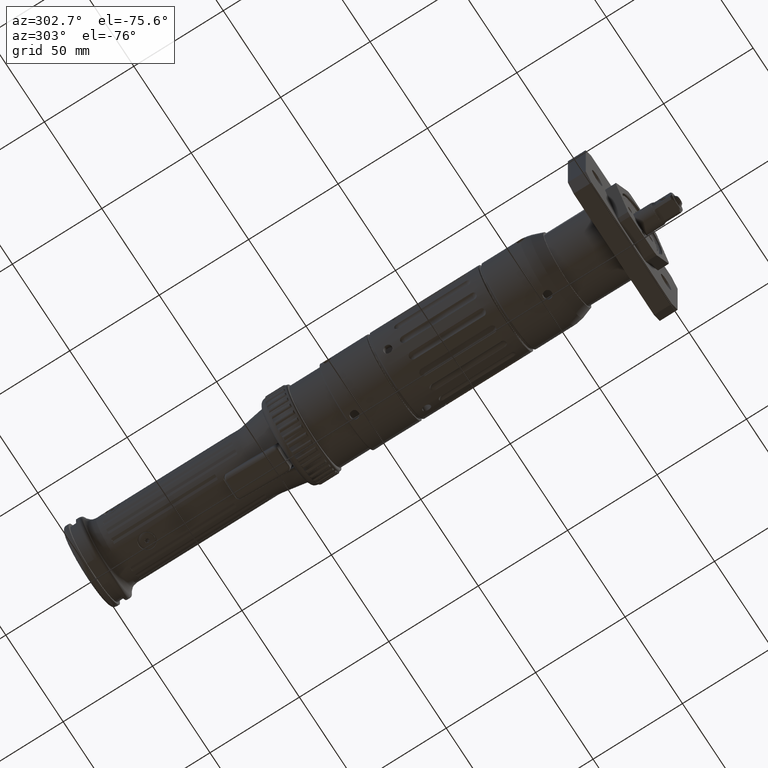
[diagram: clean part render]
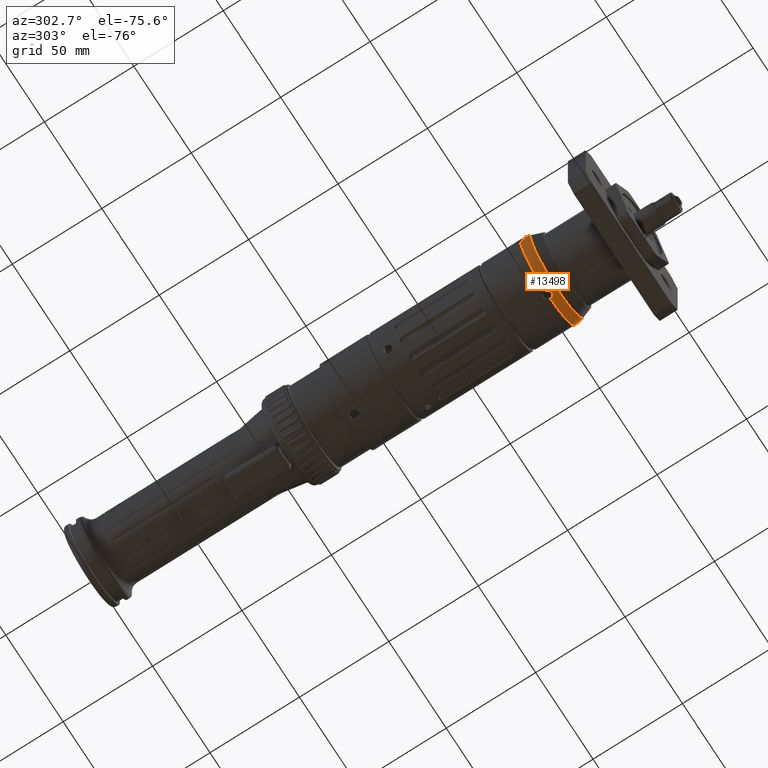
[diagram: same view with one face highlighted and labeled with its STEP entity id]
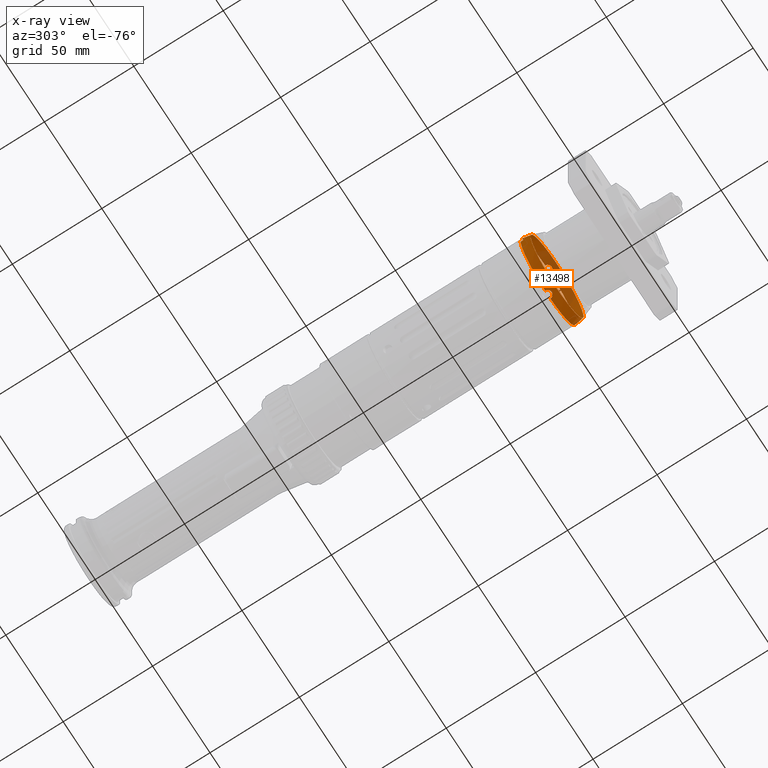
[diagram: x-ray of the same camera — body ghosted, the highlighted face saturated]
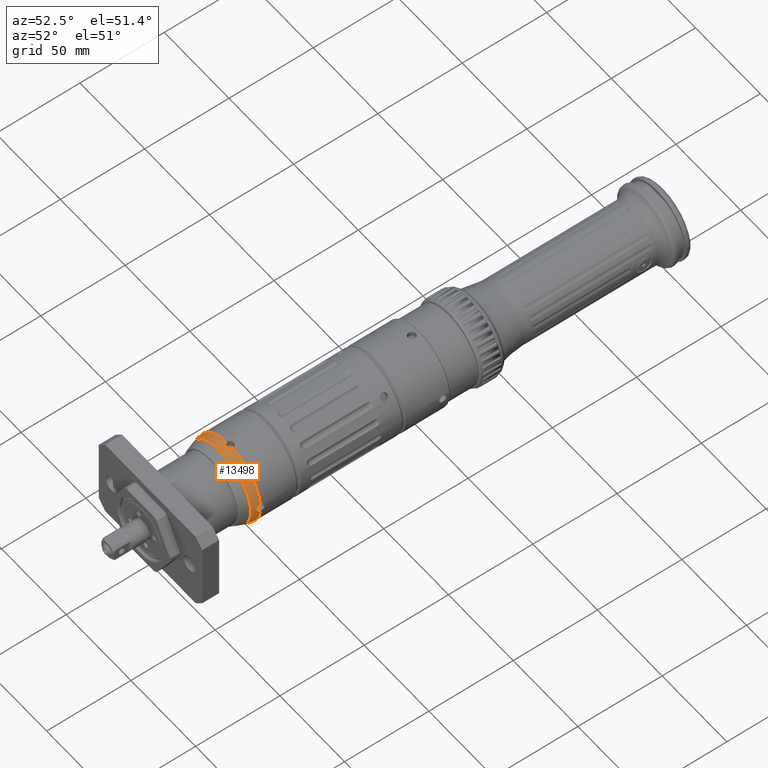
[diagram: same view with one face highlighted and labeled with its STEP entity id]
A machine part, auxiliary view. The second image highlights one B-rep face of the part: STEP entity #13498.
The next image is the same camera in x-ray: the body ghosted, the highlighted face saturated — about 30% of this face is hidden behind the body in this view.
A second angle (auxiliary view) of the same face is appended — the face is thin or edge-on in the first view.
In plain terms, the highlighted face is a freeform B-spline surface patch.
Its self-contained STEP definition (entity closure, byte-faithful):
#88=(
BOUNDED_CURVE()
B_SPLINE_CURVE(2,(#21189,#21190,#21191),.UNSPECIFIED.,.F.,.F.)
B_SPLINE_CURVE_WITH_KNOTS((3,3),(0.146414003445394,0.349065850398866),
 .UNSPECIFIED.)
CURVE()
GEOMETRIC_REPRESENTATION_ITEM()
RATIONAL_B_SPLINE_CURVE((0.992601043678406,0.991180068437155,1.))
REPRESENTATION_ITEM('')
);
#112=(
BOUNDED_SURFACE()
B_SPLINE_SURFACE(2,2,((#21161,#21162,#21163,#21164,#21165,#21166,#21167,
#21168,#21169),(#21170,#21171,#21172,#21173,#21174,#21175,#21176,#21177,
#21178),(#21179,#21180,#21181,#21182,#21183,#21184,#21185,#21186,#21187)),
 .UNSPECIFIED.,.F.,.T.,.F.)
B_SPLINE_SURFACE_WITH_KNOTS((3,3),(3,2,2,2,3),(-0.349065850398866,1.51400150989094E-15),
(-3.14159265358979,-1.5707963267949,0.,1.5707963267949,3.14159265358979),
 .UNSPECIFIED.)
GEOMETRIC_REPRESENTATION_ITEM()
RATIONAL_B_SPLINE_SURFACE(((1.,0.707106781186548,1.,0.707106781186548,1.,
0.707106781186548,1.,0.707106781186548,1.),(0.984807753012233,0.696364240320036,
0.984807753012233,0.696364240320036,0.984807753012233,0.696364240320036,
0.984807753012233,0.696364240320036,0.984807753012233),(1.,0.707106781186548,
1.,0.707106781186548,1.,0.707106781186548,1.,0.707106781186548,1.)))
REPRESENTATION_ITEM('')
SURFACE()
);
#1018=FACE_OUTER_BOUND('',#1873,.T.);
#1873=EDGE_LOOP('',(#8864,#8865,#8866,#8867,#8868,#8869,#8870,#8871,#8872,
#8873,#8874,#8875,#8876));
#2982=CIRCLE('',#14410,24.);
#2983=CIRCLE('',#14411,24.);
#2984=CIRCLE('',#14412,24.);
#2985=CIRCLE('',#14413,24.);
#2988=CIRCLE('',#14418,23.0953893117886);
#2989=CIRCLE('',#14419,23.0953893117886);
#5371=B_SPLINE_CURVE_WITH_KNOTS('',3,(#20965,#20966,#20967,#20968,#20969,
#20970,#20971,#20972,#20973,#20974,#20975,#20976,#20977,#20978,#20979,#20980,
#20981,#20982,#20983,#20984,#20985,#20986),.UNSPECIFIED.,.F.,.F.,(4,2,2,
2,2,2,2,2,2,2,4),(-0.701805174291092,-0.626086869298144,-0.544119406304498,
-0.452416239114534,-0.396364582451498,-0.355433841033587,-0.315785137511392,
-0.265073836999457,-0.181571571946541,-0.0912090586456592,-2.40558198899764E-6),
 .UNSPECIFIED.);
#5374=B_SPLINE_CURVE_WITH_KNOTS('',3,(#21020,#21021,#21022,#21023,#21024,
#21025,#21026,#21027,#21028,#21029,#21030,#21031),.UNSPECIFIED.,.F.,.F.,
(4,2,2,2,2,4),(-0.350955575702463,-0.315785137511466,-0.265073836999518,
-0.181571571946578,-0.0912090586456681,-2.40558198949841E-6),
 .UNSPECIFIED.);
#5375=B_SPLINE_CURVE_WITH_KNOTS('',3,(#21032,#21033,#21034,#21035,#21036,
#21037,#21038,#21039,#21040,#21041,#21042,#21043,#21044,#21045),
 .UNSPECIFIED.,.F.,.F.,(4,2,2,2,2,2,4),(-0.701805174291221,-0.626086869298249,
-0.54411940630459,-0.452416239114606,-0.396364582451586,-0.355433841033673,
-0.350955575702463),.UNSPECIFIED.);
#5378=B_SPLINE_CURVE_WITH_KNOTS('',3,(#21078,#21079,#21080,#21081,#21082,
#21083,#21084,#21085,#21086,#21087,#21088,#21089,#21090,#21091,#21092,#21093,
#21094,#21095,#21096,#21097,#21098,#21099),.UNSPECIFIED.,.F.,.F.,(4,2,2,
2,2,2,2,2,2,2,4),(-0.701805174291044,-0.626086869298089,-0.544119406304454,
-0.45241623911449,-0.39636458245146,-0.35543384103356,-0.31578513751137,
-0.26507383699943,-0.181571571946522,-0.0912090586456537,-2.40558198941479E-6),
 .UNSPECIFIED.);
#5381=B_SPLINE_CURVE_WITH_KNOTS('',3,(#21139,#21140,#21141,#21142,#21143,
#21144,#21145,#21146,#21147,#21148,#21149,#21150,#21151,#21152,#21153,#21154,
#21155,#21156,#21157,#21158,#21159,#21160),.UNSPECIFIED.,.F.,.F.,(4,2,2,
2,2,2,2,2,2,2,4),(-0.701802741551978,-0.626084056451586,-0.544116663821935,
-0.45241348281178,-0.396362082775909,-0.35543171577453,-0.315783477344543,
-0.265072829750344,-0.181571501097342,-0.0912090503521253,0.),
 .UNSPECIFIED.);
#5601=VERTEX_POINT('',#20938);
#5602=VERTEX_POINT('',#20952);
#5605=VERTEX_POINT('',#20992);
#5606=VERTEX_POINT('',#21006);
#5607=VERTEX_POINT('',#21019);
#5610=VERTEX_POINT('',#21051);
#5611=VERTEX_POINT('',#21065);
#5612=VERTEX_POINT('',#21101);
#5614=VERTEX_POINT('',#21116);
#5617=VERTEX_POINT('',#21188);
#5618=VERTEX_POINT('',#21192);
#6899=EDGE_CURVE('',#5601,#5602,#5371,.T.);
#6903=EDGE_CURVE('',#5607,#5606,#5374,.T.);
#6904=EDGE_CURVE('',#5605,#5607,#5375,.T.);
#6908=EDGE_CURVE('',#5610,#5611,#5378,.T.);
#6909=EDGE_CURVE('',#5612,#5601,#2982,.T.);
#6912=EDGE_CURVE('',#5611,#5614,#2983,.T.);
#6913=EDGE_CURVE('',#5606,#5610,#2984,.T.);
#6914=EDGE_CURVE('',#5602,#5605,#2985,.T.);
#6917=EDGE_CURVE('',#5614,#5612,#5381,.T.);
#6918=EDGE_CURVE('',#5607,#5617,#88,.T.);
#6919=EDGE_CURVE('',#5617,#5618,#2988,.T.);
#6920=EDGE_CURVE('',#5618,#5617,#2989,.T.);
#8864=ORIENTED_EDGE('',*,*,#6899,.T.);
#8865=ORIENTED_EDGE('',*,*,#6914,.T.);
#8866=ORIENTED_EDGE('',*,*,#6904,.T.);
#8867=ORIENTED_EDGE('',*,*,#6918,.T.);
#8868=ORIENTED_EDGE('',*,*,#6919,.T.);
#8869=ORIENTED_EDGE('',*,*,#6920,.T.);
#8870=ORIENTED_EDGE('',*,*,#6918,.F.);
#8871=ORIENTED_EDGE('',*,*,#6903,.T.);
#8872=ORIENTED_EDGE('',*,*,#6913,.T.);
#8873=ORIENTED_EDGE('',*,*,#6908,.T.);
#8874=ORIENTED_EDGE('',*,*,#6912,.T.);
#8875=ORIENTED_EDGE('',*,*,#6917,.T.);
#8876=ORIENTED_EDGE('',*,*,#6909,.T.);
#13498=ADVANCED_FACE('',(#1018),#112,.F.);
#14410=AXIS2_PLACEMENT_3D('',#21102,#16407,#16408);
#14411=AXIS2_PLACEMENT_3D('',#21130,#16409,#16410);
#14412=AXIS2_PLACEMENT_3D('',#21131,#16411,#16412);
#14413=AXIS2_PLACEMENT_3D('',#21132,#16413,#16414);
#14418=AXIS2_PLACEMENT_3D('',#21193,#16423,#16424);
#14419=AXIS2_PLACEMENT_3D('',#21194,#16425,#16426);
#16407=DIRECTION('center_axis',(-8.42499371585531E-16,-1.,-1.36108718820059E-15));
#16408=DIRECTION('ref_axis',(2.1632341619892E-16,-1.36790363638354E-15,
1.));
#16409=DIRECTION('center_axis',(-8.42499371585531E-16,-1.,-1.36108718820059E-15));
#16410=DIRECTION('ref_axis',(2.1632341619892E-16,-1.36790363638354E-15,
1.));
#16411=DIRECTION('center_axis',(-8.42499371585531E-16,-1.,-1.36108718820059E-15));
#16412=DIRECTION('ref_axis',(2.1632341619892E-16,-1.36790363638354E-15,
1.));
#16413=DIRECTION('center_axis',(-8.42499371585531E-16,-1.,-1.36108718820059E-15));
#16414=DIRECTION('ref_axis',(2.1632341619892E-16,-1.36790363638354E-15,
1.));
#16423=DIRECTION('center_axis',(8.42499371585531E-16,1.,1.48355186811532E-15));
#16424=DIRECTION('ref_axis',(3.08171926134971E-16,-1.48355186811532E-15,
1.));
#16425=DIRECTION('center_axis',(8.42499371585531E-16,1.,1.48355186811532E-15));
#16426=DIRECTION('ref_axis',(3.08171926134971E-16,-1.48355186811532E-15,
1.));
#20938=CARTESIAN_POINT('',(23.8898031167812,46.8873369689909,-2.29723900398814));
#20952=CARTESIAN_POINT('',(23.8898031167812,46.8873369689909,2.29723900398788));
#20965=CARTESIAN_POINT('Ctrl Pts',(23.8898031167812,46.8873369689909,-2.29723900398814));
#20966=CARTESIAN_POINT('Ctrl Pts',(23.8909919393988,46.6352512757386,-2.28487601597228));
#20967=CARTESIAN_POINT('Ctrl Pts',(23.8897110114039,46.3869332308212,-2.2311070357247));
#20968=CARTESIAN_POINT('Ctrl Pts',(23.8829843637358,45.8983653939742,-2.03740945284263));
#20969=CARTESIAN_POINT('Ctrl Pts',(23.8772794990315,45.6643887679912,-1.89228646730766));
#20970=CARTESIAN_POINT('Ctrl Pts',(23.8638218477309,45.2342311676894,-1.50513817452895));
#20971=CARTESIAN_POINT('Ctrl Pts',(23.8561147376913,45.0500847212908,-1.25746954828582));
#20972=CARTESIAN_POINT('Ctrl Pts',(23.8466196806624,44.8400487680671,-0.81209897718754));
#20973=CARTESIAN_POINT('Ctrl Pts',(23.8437299970316,44.7812442340552,-0.634056057253056));
#20974=CARTESIAN_POINT('Ctrl Pts',(23.8405771685241,44.7178789324729,-0.317073727859315));
#20975=CARTESIAN_POINT('Ctrl Pts',(23.8398190065352,44.7030914992756,-0.181177965150291));
#20976=CARTESIAN_POINT('Ctrl Pts',(23.8395528419199,44.6978632339988,0.087364871823254));
#20977=CARTESIAN_POINT('Ctrl Pts',(23.8400066752976,44.7066842216175,0.219472143558165));
#20978=CARTESIAN_POINT('Ctrl Pts',(23.8423090189935,44.752528491585,0.517148844900757));
#20979=CARTESIAN_POINT('Ctrl Pts',(23.8445077758108,44.7965924737219,0.680852009835358));
#20980=CARTESIAN_POINT('Ctrl Pts',(23.8521375619283,44.9596128120755,1.09739140005552));
#20981=CARTESIAN_POINT('Ctrl Pts',(23.8586903345786,45.1072270730261,1.33597681012777));
#20982=CARTESIAN_POINT('Ctrl Pts',(23.8725099985461,45.4957486425519,1.76575634959355));
#20983=CARTESIAN_POINT('Ctrl Pts',(23.8795821527099,45.7396054319542,1.94733291774263));
#20984=CARTESIAN_POINT('Ctrl Pts',(23.8890467919353,46.2860126819005,2.20740222175681));
#20985=CARTESIAN_POINT('Ctrl Pts',(23.8912351313042,46.5836832796801,2.28234697710018));
#20986=CARTESIAN_POINT('Ctrl Pts',(23.8898031167812,46.8873369689908,2.29723900398788));
#20992=CARTESIAN_POINT('',(2.29723900398824,46.8873369689908,23.8898031167808));
#21006=CARTESIAN_POINT('',(-2.29723900398777,46.8873369689908,23.8898031167808));
#21019=CARTESIAN_POINT('',(2.3083134688454E-13,44.7,23.839661619595));
#21020=CARTESIAN_POINT('Ctrl Pts',(2.29781471627888E-13,44.7,23.839661619595));
#21021=CARTESIAN_POINT('Ctrl Pts',(-0.117188513051721,44.7,23.839661619595));
#21022=CARTESIAN_POINT('Ctrl Pts',(-0.234225078396661,44.7089562755757,
23.8401207800504));
#21023=CARTESIAN_POINT('Ctrl Pts',(-0.517148844900669,44.752528491585,23.8423090189931));
#21024=CARTESIAN_POINT('Ctrl Pts',(-0.680852009835275,44.7965924737219,
23.8445077758105));
#21025=CARTESIAN_POINT('Ctrl Pts',(-1.09739140005544,44.9596128120755,23.8521375619279));
#21026=CARTESIAN_POINT('Ctrl Pts',(-1.33597681012769,45.1072270730261,23.8586903345783));
#21027=CARTESIAN_POINT('Ctrl Pts',(-1.76575634959344,45.4957486425519,23.8725099985457));
#21028=CARTESIAN_POINT('Ctrl Pts',(-1.94733291774253,45.7396054319542,23.8795821527095));
#21029=CARTESIAN_POINT('Ctrl Pts',(-2.20740222175668,46.2860126819004,23.889046791935));
#21030=CARTESIAN_POINT('Ctrl Pts',(-2.28234697710008,46.5836832796801,23.8912351313038));
#21031=CARTESIAN_POINT('Ctrl Pts',(-2.29723900398778,46.8873369689908,23.8898031167808));
#21032=CARTESIAN_POINT('Ctrl Pts',(2.29723900398824,46.8873369689908,23.8898031167808));
#21033=CARTESIAN_POINT('Ctrl Pts',(2.28487601597239,46.6352512757386,23.8909919393984));
#21034=CARTESIAN_POINT('Ctrl Pts',(2.23110703572481,46.3869332308212,23.8897110114036));
#21035=CARTESIAN_POINT('Ctrl Pts',(2.03740945284272,45.8983653939742,23.8829843637355));
#21036=CARTESIAN_POINT('Ctrl Pts',(1.89228646730776,45.6643887679912,23.8772794990312));
#21037=CARTESIAN_POINT('Ctrl Pts',(1.50513817452903,45.2342311676893,23.8638218477305));
#21038=CARTESIAN_POINT('Ctrl Pts',(1.2574695482859,45.0500847212908,23.856114737691));
#21039=CARTESIAN_POINT('Ctrl Pts',(0.812098977187719,44.8400487680672,23.8466196806621));
#21040=CARTESIAN_POINT('Ctrl Pts',(0.634056057253198,44.7812442340551,23.8437299970313));
#21041=CARTESIAN_POINT('Ctrl Pts',(0.317073727859324,44.7178789324728,23.8405771685238));
#21042=CARTESIAN_POINT('Ctrl Pts',(0.181177965150338,44.7030914992756,23.8398190065348));
#21043=CARTESIAN_POINT('Ctrl Pts',(0.0298457798067943,44.7001452102633,
23.8396690145509));
#21044=CARTESIAN_POINT('Ctrl Pts',(0.0149216581372895,44.7,23.839661619595));
#21045=CARTESIAN_POINT('Ctrl Pts',(2.29774097256771E-13,44.7,23.839661619595));
#21051=CARTESIAN_POINT('',(-23.8898031167807,46.8873369689909,2.29723900398789));
#21065=CARTESIAN_POINT('',(-23.8898031167807,46.8873369689909,-2.29723900398813));
#21078=CARTESIAN_POINT('Ctrl Pts',(-23.8898031167807,46.8873369689909,2.29723900398789));
#21079=CARTESIAN_POINT('Ctrl Pts',(-23.8909919393983,46.6352512757386,2.28487601597204));
#21080=CARTESIAN_POINT('Ctrl Pts',(-23.8897110114035,46.3869332308212,2.23110703572448));
#21081=CARTESIAN_POINT('Ctrl Pts',(-23.8829843637354,45.8983653939742,2.03740945284237));
#21082=CARTESIAN_POINT('Ctrl Pts',(-23.8772794990311,45.6643887679912,1.8922864673074));
#21083=CARTESIAN_POINT('Ctrl Pts',(-23.8638218477304,45.2342311676894,1.50513817452867));
#21084=CARTESIAN_POINT('Ctrl Pts',(-23.8561147376909,45.0500847212909,1.25746954828554));
#21085=CARTESIAN_POINT('Ctrl Pts',(-23.846619680662,44.8400487680672,0.812098977187303));
#21086=CARTESIAN_POINT('Ctrl Pts',(-23.8437299970312,44.7812442340552,0.63405605725281));
#21087=CARTESIAN_POINT('Ctrl Pts',(-23.8405771685237,44.7178789324729,0.317073727859068));
#21088=CARTESIAN_POINT('Ctrl Pts',(-23.8398190065348,44.7030914992757,0.181177965150038));
#21089=CARTESIAN_POINT('Ctrl Pts',(-23.8395528419194,44.6978632339988,-0.0873648718235319));
#21090=CARTESIAN_POINT('Ctrl Pts',(-23.8400066752971,44.7066842216176,-0.219472143558462));
#21091=CARTESIAN_POINT('Ctrl Pts',(-23.842309018993,44.7525284915851,-0.517148844901003));
#21092=CARTESIAN_POINT('Ctrl Pts',(-23.8445077758104,44.7965924737219,-0.680852009835594));
#21093=CARTESIAN_POINT('Ctrl Pts',(-23.8521375619279,44.9596128120756,-1.09739140005578));
#21094=CARTESIAN_POINT('Ctrl Pts',(-23.8586903345782,45.1072270730261,-1.33597681012803));
#21095=CARTESIAN_POINT('Ctrl Pts',(-23.8725099985456,45.495748642552,-1.76575634959379));
#21096=CARTESIAN_POINT('Ctrl Pts',(-23.8795821527094,45.7396054319542,-1.94733291774289));
#21097=CARTESIAN_POINT('Ctrl Pts',(-23.8890467919349,46.2860126819006,-2.20740222175708));
#21098=CARTESIAN_POINT('Ctrl Pts',(-23.8912351313037,46.5836832796802,-2.28234697710043));
#21099=CARTESIAN_POINT('Ctrl Pts',(-23.8898031167807,46.8873369689909,-2.29723900398813));
#21101=CARTESIAN_POINT('',(2.29723900398823,46.8873369689909,-23.8898031167811));
#21102=CARTESIAN_POINT('Origin',(2.27263341968514E-13,46.8873369689909,
-1.24507605802898E-13));
#21116=CARTESIAN_POINT('',(-2.29723900398778,46.8873369689909,-23.8898031167811));
#21130=CARTESIAN_POINT('Origin',(2.27263341968514E-13,46.8873369689909,
-1.24507605802898E-13));
#21131=CARTESIAN_POINT('Origin',(2.27263341968514E-13,46.8873369689909,
-1.24507605802898E-13));
#21132=CARTESIAN_POINT('Origin',(2.27263341968514E-13,46.8873369689909,
-1.24507605802898E-13));
#21139=CARTESIAN_POINT('Ctrl Pts',(-2.29723900398779,46.8873369689909,-23.8898031167811));
#21140=CARTESIAN_POINT('Ctrl Pts',(-2.28487594848481,46.6352498996523,-23.8909919458882));
#21141=CARTESIAN_POINT('Ctrl Pts',(-2.23110645278565,46.386930587969,-23.8897109966757));
#21142=CARTESIAN_POINT('Ctrl Pts',(-2.03740765307582,45.8983621236541,-23.8829842952629));
#21143=CARTESIAN_POINT('Ctrl Pts',(-1.89228442910339,45.664385928255,-23.8772794226655));
#21144=CARTESIAN_POINT('Ctrl Pts',(-1.50513565664217,45.2342290135033,-23.8638217663778));
#21145=CARTESIAN_POINT('Ctrl Pts',(-1.25746672746864,45.0500828949288,-23.8561146599912));
#21146=CARTESIAN_POINT('Ctrl Pts',(-0.812096579463583,44.8400479405205,
-23.8466196402785));
#21147=CARTESIAN_POINT('Ctrl Pts',(-0.634054426918738,44.7812438401758,
-23.843729977587));
#21148=CARTESIAN_POINT('Ctrl Pts',(-0.317074137400815,44.7178790639771,
-23.8405771749551));
#21149=CARTESIAN_POINT('Ctrl Pts',(-0.181179629402663,44.7030917046831,
-23.8398190169882));
#21150=CARTESIAN_POINT('Ctrl Pts',(0.0873604031324751,44.6978631534169,
-23.8395528378212));
#21151=CARTESIAN_POINT('Ctrl Pts',(0.219466139671065,44.7066837363738,-23.8400066503246));
#21152=CARTESIAN_POINT('Ctrl Pts',(0.517139308917847,44.7525264610123,-23.8423089177878));
#21153=CARTESIAN_POINT('Ctrl Pts',(0.680840560994139,44.7965891029237,-23.8445076098521));
#21154=CARTESIAN_POINT('Ctrl Pts',(1.09737601724025,44.9596049642369,-23.8521372081239));
#21155=CARTESIAN_POINT('Ctrl Pts',(1.3359599092296,45.1072156026594,-23.8586898517049));
#21156=CARTESIAN_POINT('Ctrl Pts',(1.76574092373949,45.4957305769,-23.8725094369727));
#21157=CARTESIAN_POINT('Ctrl Pts',(1.94731987155848,45.7395853259137,-23.8795816557385));
#21158=CARTESIAN_POINT('Ctrl Pts',(2.20739821291354,46.2859968873724,-23.8890466684331));
#21159=CARTESIAN_POINT('Ctrl Pts',(2.28234657779176,46.5836751376333,-23.8912351697015));
#21160=CARTESIAN_POINT('Ctrl Pts',(2.29723900398823,46.8873369689909,-23.8898031167811));
#21161=CARTESIAN_POINT('Ctrl Pts',(2.2935132387535E-13,41.7570348191058,
23.0953893117885));
#21162=CARTESIAN_POINT('Ctrl Pts',(23.0953893117888,41.7570348191058,23.0953893117885));
#21163=CARTESIAN_POINT('Ctrl Pts',(23.0953893117888,41.7570348191058,-1.37900652574862E-13));
#21164=CARTESIAN_POINT('Ctrl Pts',(23.0953893117888,41.7570348191059,-23.0953893117888));
#21165=CARTESIAN_POINT('Ctrl Pts',(2.16530807387035E-13,41.7570348191059,
-23.0953893117888));
#21166=CARTESIAN_POINT('Ctrl Pts',(-23.0953893117884,41.7570348191059,-23.0953893117887));
#21167=CARTESIAN_POINT('Ctrl Pts',(-23.0953893117884,41.7570348191059,-1.25080136086547E-13));
#21168=CARTESIAN_POINT('Ctrl Pts',(-23.0953893117884,41.7570348191058,23.0953893117885));
#21169=CARTESIAN_POINT('Ctrl Pts',(2.2935132387535E-13,41.7570348191058,
23.0953893117885));
#21170=CARTESIAN_POINT('Ctrl Pts',(2.31696349559658E-13,44.2424322583639,
23.9999999999999));
#21171=CARTESIAN_POINT('Ctrl Pts',(24.0000000000002,44.2424322583639,23.9999999999999));
#21172=CARTESIAN_POINT('Ctrl Pts',(24.0000000000002,44.2424322583639,-1.34768889866295E-13));
#21173=CARTESIAN_POINT('Ctrl Pts',(24.0000000000002,44.2424322583639,-24.0000000000001));
#21174=CARTESIAN_POINT('Ctrl Pts',(2.18373673264157E-13,44.2424322583639,
-24.0000000000001));
#21175=CARTESIAN_POINT('Ctrl Pts',(-23.9999999999998,44.242432258364,-24.0000000000001));
#21176=CARTESIAN_POINT('Ctrl Pts',(-23.9999999999998,44.2424322583639,-1.21446213570793E-13));
#21177=CARTESIAN_POINT('Ctrl Pts',(-23.9999999999998,44.2424322583639,23.9999999999999));
#21178=CARTESIAN_POINT('Ctrl Pts',(2.31696349559658E-13,44.2424322583639,
23.9999999999999));
#21179=CARTESIAN_POINT('Ctrl Pts',(2.33924680116265E-13,46.8873369689909,
23.9999999999999));
#21180=CARTESIAN_POINT('Ctrl Pts',(24.0000000000002,46.8873369689908,23.9999999999999));
#21181=CARTESIAN_POINT('Ctrl Pts',(24.0000000000002,46.8873369689909,-1.31168943950649E-13));
#21182=CARTESIAN_POINT('Ctrl Pts',(24.0000000000002,46.8873369689909,-24.0000000000001));
#21183=CARTESIAN_POINT('Ctrl Pts',(2.20602003820763E-13,46.8873369689909,
-24.0000000000001));
#21184=CARTESIAN_POINT('Ctrl Pts',(-23.9999999999998,46.887336968991,-24.0000000000001));
#21185=CARTESIAN_POINT('Ctrl Pts',(-23.9999999999998,46.8873369689909,-1.17846267655147E-13));
#21186=CARTESIAN_POINT('Ctrl Pts',(-23.9999999999998,46.8873369689909,23.9999999999999));
#21187=CARTESIAN_POINT('Ctrl Pts',(2.33924680116265E-13,46.8873369689909,
23.9999999999999));
#21188=CARTESIAN_POINT('',(2.2935132387535E-13,41.7570348191058,23.0953893117885));
#21189=CARTESIAN_POINT('Ctrl Pts',(2.3083134688454E-13,44.7,23.8396616195951));
#21190=CARTESIAN_POINT('Ctrl Pts',(2.29497986800826E-13,43.1906676837623,
23.6171890013893));
#21191=CARTESIAN_POINT('Ctrl Pts',(2.2935132387535E-13,41.7570348191058,
23.0953893117885));
#21192=CARTESIAN_POINT('',(2.15116622657248E-13,41.7570348191059,-23.0953893117888));
#21193=CARTESIAN_POINT('Origin',(2.25062342725873E-13,41.7570348191058,
-1.30385803243011E-13));
#21194=CARTESIAN_POINT('Origin',(2.25062342725873E-13,41.7570348191058,
-1.30385803243011E-13));